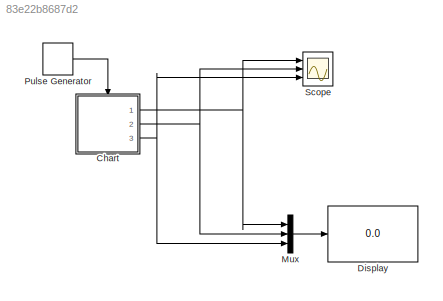
MODEL slx_83e22b8687d2
KIND model
CONFIG AbsTol = auto
CONFIG EnableMultiTasking = off
CONFIG FixedStep = auto
CONFIG MaxStep = auto
CONFIG MinStep = auto
CONFIG RelTol = 1e-3
CONFIG SampleTimeConstraint = Unconstrained
CONFIG SolverName = VariableStepAuto
CONFIG StartTime = 0.0
CONFIG StopTime = 2000
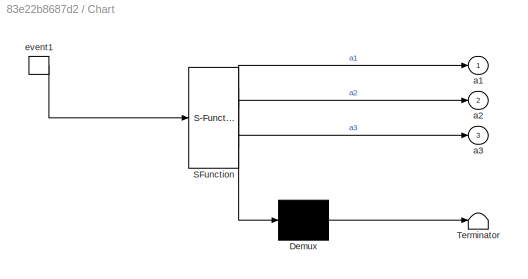
BLOCK [SubSystem] Chart
  ErrorFcn = Stateflow.Translate.translate
  PermitHierarchicalResolution = ExplicitOnly
  Ports = [0, 3, 0, 1]
  RequestExecContextInheritance = off
  SFBlockType = Chart
  TreatAsAtomicUnit = on
BLOCK [Demux] Chart/ Demux 
  Outputs = 1
  Ports = [1, 1]
BLOCK [S-Function] Chart/ SFunction 
  EnableBusSupport = on
  FunctionName = sf_sfun
  PortCounts = [1 4]
  Ports = [1, 4]
  SFcnIsStateOwnerBlock = off
  SFunctionDeploymentMode = off
  Tag = Stateflow S-Function 3
BLOCK [Terminator] Chart/ Terminator 
BLOCK [Outport] Chart/a1
BLOCK [Outport] Chart/a2
  Port = 2
BLOCK [Outport] Chart/a3
  Port = 3
BLOCK [TriggerPort] Chart/event1
  Ports = [0, 1]
  ShowOutputPort = on
  StatesWhenEnabling = held
  VariantControl = (inherit)
BLOCK [Display] Display
  Decimation = 1
  Ports = [1]
BLOCK [Mux] Mux
  DisplayOption = bar
  Inputs = 3
  Ports = [3, 1]
BLOCK [DiscretePulseGenerator] Pulse Generator
  Period = 10
  Ports = [0, 1]
  PulseType = Time based
  PulseWidth = 5
BLOCK [Scope] Scope
  Floating = off
  NumInputPorts = 3
  Ports = [3]
  ScopeSpecificationString = Simulink.scopes.TimeScopeBlockCfg('CurrentConfiguration', extmgr.ConfigurationSet(extmgr.Configuration('Core','General UI',true),extmgr.Configuration('Core','Source UI',true),extmgr.Configuration('Sources','WiredSimulink',true),extmgr.Configuration('Visuals','Time Domain',true,'SerializedDisplays',{struct('MinYLimReal','-0.5','MaxYLimReal','4.5','YLabelReal','','MinYLimMag','0.00000','MaxYLimMag',...<+2696ch>
NET Chart:1 -> Mux:1, Scope:1
NET Chart:2 -> Mux:2, Scope:2
NET Chart:3 -> Mux:3, Scope:3
LINE Mux:1 -> Display:1
LINE Pulse Generator:1 -> Chart:trigger
note: NET lines group one-source signal fan-out (src -> all destinations, sorted); 1:1 wires keep LINE
CHART Chart states=18 transitions=18
  STATE_LABEL 'state1'
  STATE_LABEL 'two1\nen:\na1=2;'
  STATE_LABEL 'three1\nen:\na1=3;'
  STATE_LABEL 'one1\nen:\na1=1;'
  STATE_LABEL 'four1\nen:\na1=4;'
  STATE_LABEL 'zero1\nen:\na1=0;'
  STATE_LABEL 'event1'
  STATE_LABEL 'event1'
  STATE_LABEL 'event1'
  STATE_LABEL 'event1'
  STATE_LABEL 'event1/{state2.event2}'
  STATE_LABEL 'two1\nen:\na1=2;'
  STATE_LABEL 'three1\nen:\na1=3;'
  STATE_LABEL 'one1\nen:\na1=1;'
  STATE_LABEL 'four1\nen:\na1=4;'
  STATE_LABEL 'zero1\nen:\na1=0;'
  STATE_LABEL 'state2'
  STATE_LABEL 'two2\nen:\na2=2;'
  STATE_LABEL 'one2\nen:\na2=1;'
  STATE_LABEL 'three2\nen:\na2=3;'
  STATE_LABEL 'zero2\nen:\na2=0;'
  STATE_LABEL 'four2\nen:\na2=4;'
  STATE_LABEL 'event2'
  STATE_LABEL 'event2'
  STATE_LABEL 'event2'
  STATE_LABEL 'event2'
  STATE_LABEL 'event2/{state3.event3}'
  STATE_LABEL 'two2\nen:\na2=2;'
  STATE_LABEL 'one2\nen:\na2=1;'
  STATE_LABEL 'three2\nen:\na2=3;'
  STATE_LABEL 'zero2\nen:\na2=0;'
  STATE_LABEL 'four2\nen:\na2=4;'
  STATE_LABEL 'state3'
  STATE_LABEL 'two3 \nen:\na3=2;'
  STATE_LABEL 'one3 \nen:\na3=1;'
  STATE_LABEL 'three3 \nen:\na3=3;'
  STATE_LABEL 'four3\nen:\na3=4;'
  STATE_LABEL 'zero3\nen:\na3=0;'
  STATE_LABEL 'event3'
  STATE_LABEL 'event3'
CHART  states=0 transitions=0
